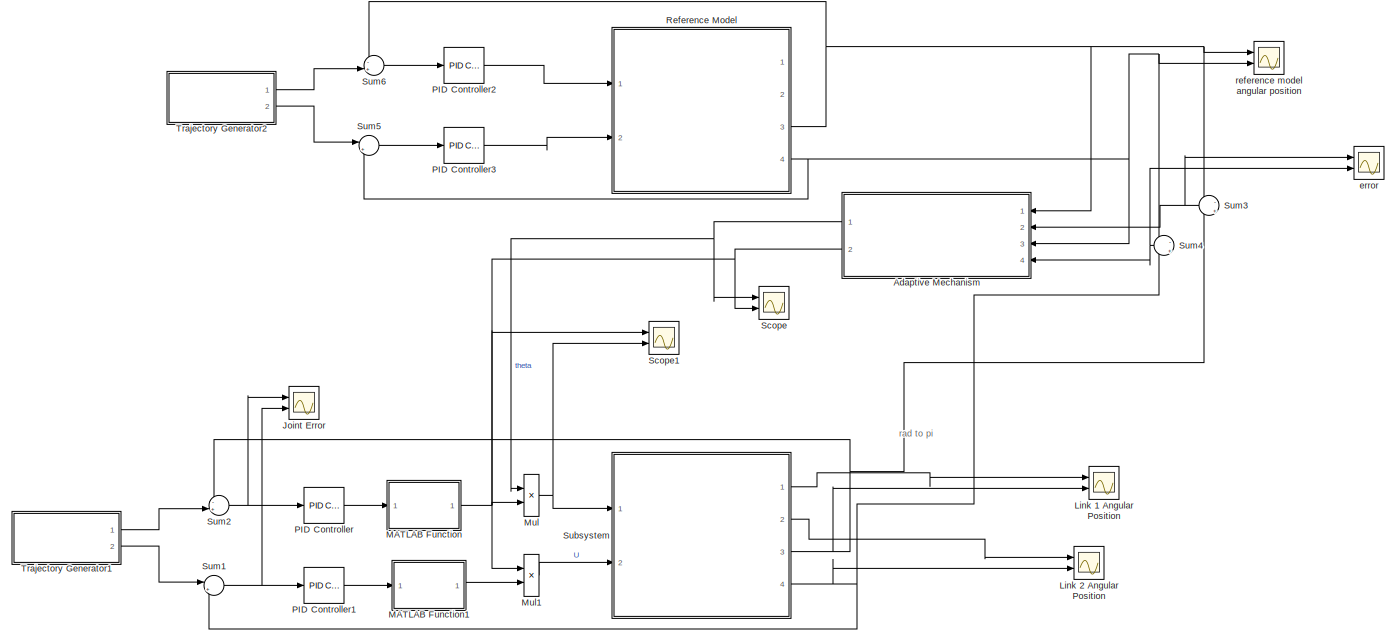
[diagram: root canvas - part 1/2, full width, top band]
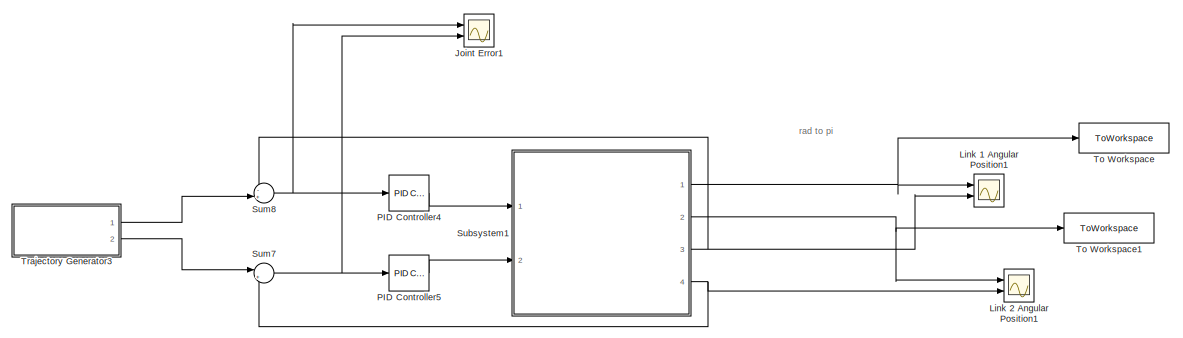
[diagram: root canvas - part 2/2, full width, bottom band]
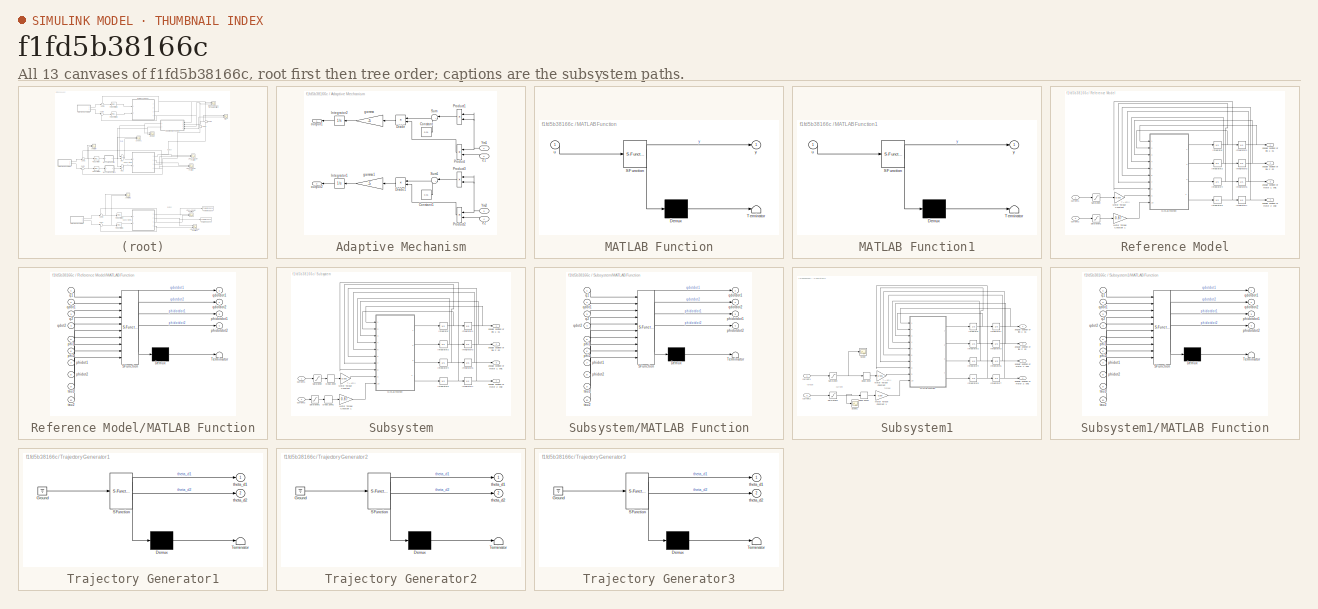
[diagram: thumbnail index - all 13 canvases of the model, root first then tree order]
MODEL slx_f1fd5b38166c
KIND model
CONFIG AbsTol = auto
CONFIG EnableMultiTasking = off
CONFIG FixedStep = auto
CONFIG MaxStep = auto
CONFIG MinStep = auto
CONFIG RelTol = 1e-3
CONFIG SampleTimeConstraint = Unconstrained
CONFIG Solver = VariableStepAuto
CONFIG SolverName = VariableStepAuto
CONFIG StartTime = 0.0
CONFIG StopTime = 10
BLOCK [SubSystem] Adaptive Mechanism
  Ports = [4, 2]
  RequestExecContextInheritance = off
BLOCK [Constant] Adaptive Mechanism/Constant
  Value = 0.01
BLOCK [Constant] Adaptive Mechanism/Constant1
  Value = 0.01
BLOCK [Product] Adaptive Mechanism/Divide
  InputSameDT = off
  Inputs = /*
  OutDataTypeStr = Inherit: Inherit via internal rule
  Ports = [2, 1]
  RndMeth = Floor
  SaturateOnIntegerOverflow = off
BLOCK [Product] Adaptive Mechanism/Divide1
  InputSameDT = off
  Inputs = /*
  OutDataTypeStr = Inherit: Inherit via internal rule
  Ports = [2, 1]
  RndMeth = Floor
  SaturateOnIntegerOverflow = off
BLOCK [Integrator] Adaptive Mechanism/Integrator1
  InitialCondition = 1
  Ports = [1, 1]
BLOCK [Integrator] Adaptive Mechanism/Integrator2
  InitialCondition = 1
  Ports = [1, 1]
BLOCK [Product] Adaptive Mechanism/Product
  InputSameDT = off
  OutDataTypeStr = Inherit: Inherit via internal rule
  Ports = [2, 1]
  RndMeth = Floor
  SaturateOnIntegerOverflow = off
BLOCK [Product] Adaptive Mechanism/Product1
  InputSameDT = off
  OutDataTypeStr = Inherit: Inherit via internal rule
  Ports = [2, 1]
  RndMeth = Floor
  SaturateOnIntegerOverflow = off
BLOCK [Product] Adaptive Mechanism/Product2
  InputSameDT = off
  OutDataTypeStr = Inherit: Inherit via internal rule
  Ports = [2, 1]
  RndMeth = Floor
  SaturateOnIntegerOverflow = off
BLOCK [Product] Adaptive Mechanism/Product3
  InputSameDT = off
  OutDataTypeStr = Inherit: Inherit via internal rule
  Ports = [2, 1]
  RndMeth = Floor
  SaturateOnIntegerOverflow = off
BLOCK [Sum] Adaptive Mechanism/Sum
  IconShape = round
  InputSameDT = off
  Inputs = |++
  OutDataTypeStr = Inherit: Inherit via internal rule
  Ports = [2, 1]
  SaturateOnIntegerOverflow = off
BLOCK [Sum] Adaptive Mechanism/Sum1
  IconShape = round
  InputSameDT = off
  Inputs = |++
  OutDataTypeStr = Inherit: Inherit via internal rule
  Ports = [2, 1]
  SaturateOnIntegerOverflow = off
BLOCK [Inport] Adaptive Mechanism/Ym1
  IconDisplay = Port number
BLOCK [Inport] Adaptive Mechanism/Ym2
  IconDisplay = Port number
  Port = 3
BLOCK [Inport] Adaptive Mechanism/e1
  IconDisplay = Port number
  Port = 2
BLOCK [Inport] Adaptive Mechanism/e2
  IconDisplay = Port number
  Port = 4
BLOCK [Gain] Adaptive Mechanism/gamma
  Gain = -5
  OutDataTypeStr = Inherit: Inherit via internal rule
  ParamDataTypeStr = Inherit: Inherit via internal rule
  SaturateOnIntegerOverflow = off
BLOCK [Gain] Adaptive Mechanism/gamma1
  Gain = -5
  OutDataTypeStr = Inherit: Inherit via internal rule
  ParamDataTypeStr = Inherit: Inherit via internal rule
  SaturateOnIntegerOverflow = off
BLOCK [Outport] Adaptive Mechanism/output1
  IconDisplay = Port number
  VectorParamsAs1DForOutWhenUnconnected = off
BLOCK [Outport] Adaptive Mechanism/output2
  IconDisplay = Port number
  Port = 2
  VectorParamsAs1DForOutWhenUnconnected = off
BLOCK [Scope] Joint Error
  Floating = off
  NumInputPorts = 2
  Ports = [2]
  ScopeSpecificationString = Simulink.scopes.TimeScopeBlockCfg('CurrentConfiguration', extmgr.ConfigurationSet(extmgr.Configuration('Core','General UI',true,'FigureColor',[1 1 1]),extmgr.Configuration('Core','Source UI',true),extmgr.Configuration('Sources','WiredSimulink',true,'DataLoggingVariableName','ScopeData1'),extmgr.Configuration('Visuals','Time Domain',true,'SerializedDisplays',{struct('MinYLimReal','-0.08155','MaxYLi...<+1880ch>
BLOCK [Scope] Joint Error1
  Floating = off
  NumInputPorts = 2
  Ports = [2]
  ScopeSpecificationString = Simulink.scopes.TimeScopeBlockCfg('CurrentConfiguration', extmgr.ConfigurationSet(extmgr.Configuration('Core','General UI',true,'FigureColor',[1 1 1]),extmgr.Configuration('Core','Source UI',true),extmgr.Configuration('Sources','WiredSimulink',true,'DataLoggingVariableName','ScopeData1'),extmgr.Configuration('Visuals','Time Domain',true,'SerializedDisplays',{struct('MinYLimReal','0.16146','MaxYLim...<+1826ch>
BLOCK [Scope] Link 1 Angular Position
  Floating = off
  NumInputPorts = 2
  Ports = [2]
  ScopeSpecificationString = Simulink.scopes.TimeScopeBlockCfg('CurrentConfiguration', extmgr.ConfigurationSet(extmgr.Configuration('Core','General UI',true,'FigureColor',[1 1 1]),extmgr.Configuration('Core','Source UI',true),extmgr.Configuration('Sources','WiredSimulink',true,'DataLoggingVariableName','ScopeData2'),extmgr.Configuration('Visuals','Time Domain',true,'SerializedDisplays',{struct('MinYLimReal','-0.09878','MaxYLi...<+1802ch>
BLOCK [Scope] Link 1 Angular Position1
  Floating = off
  NumInputPorts = 2
  Ports = [2]
  ScopeSpecificationString = Simulink.scopes.TimeScopeBlockCfg('CurrentConfiguration', extmgr.ConfigurationSet(extmgr.Configuration('Core','General UI',true,'FigureColor',[1 1 1]),extmgr.Configuration('Core','Source UI',true),extmgr.Configuration('Sources','WiredSimulink',true,'DataLoggingVariableName','ScopeData2'),extmgr.Configuration('Visuals','Time Domain',true,'SerializedDisplays',{struct('MinYLimReal','-0.09823','MaxYLi...<+1802ch>
BLOCK [Scope] Link 2 Angular Position
  Floating = off
  NumInputPorts = 2
  Ports = [2]
  ScopeSpecificationString = Simulink.scopes.TimeScopeBlockCfg('CurrentConfiguration', extmgr.ConfigurationSet(extmgr.Configuration('Core','General UI',true,'FigureColor',[1 1 1]),extmgr.Configuration('Core','Source UI',true),extmgr.Configuration('Sources','WiredSimulink',true,'DataLoggingVariableName','ScopeData3'),extmgr.Configuration('Visuals','Time Domain',true,'SerializedDisplays',{struct('MinYLimReal','-0.10005','MaxYLi...<+1830ch>
BLOCK [Scope] Link 2 Angular Position1
  Floating = off
  NumInputPorts = 2
  Ports = [2]
  ScopeSpecificationString = Simulink.scopes.TimeScopeBlockCfg('CurrentConfiguration', extmgr.ConfigurationSet(extmgr.Configuration('Core','General UI',true,'FigureColor',[1 1 1]),extmgr.Configuration('Core','Source UI',true),extmgr.Configuration('Sources','WiredSimulink',true,'DataLoggingVariableName','ScopeData3'),extmgr.Configuration('Visuals','Time Domain',true,'SerializedDisplays',{struct('MinYLimReal','-0.09818','MaxYLi...<+1831ch>
BLOCK [SubSystem] MATLAB Function
  ErrorFcn = Stateflow.Translate.translate
  PermitHierarchicalResolution = ExplicitOnly
  Ports = [1, 1]
  RequestExecContextInheritance = off
  SFBlockType = MATLAB Function
  TreatAsAtomicUnit = on
BLOCK [Demux] MATLAB Function/ Demux 
  Outputs = 1
  Ports = [1, 1]
BLOCK [S-Function] MATLAB Function/ SFunction 
  EnableBusSupport = on
  FunctionName = sf_sfun
  PortCounts = [1 2]
  Ports = [1, 2]
  SFcnIsStateOwnerBlock = off
  SFunctionDeploymentMode = off
  Tag = Stateflow S-Function 5
BLOCK [Terminator] MATLAB Function/ Terminator 
BLOCK [Inport] MATLAB Function/u
  IconDisplay = Port number
BLOCK [Outport] MATLAB Function/y
  IconDisplay = Port number
BLOCK [SubSystem] MATLAB Function1
  ErrorFcn = Stateflow.Translate.translate
  PermitHierarchicalResolution = ExplicitOnly
  Ports = [1, 1]
  RequestExecContextInheritance = off
  SFBlockType = MATLAB Function
  TreatAsAtomicUnit = on
BLOCK [Demux] MATLAB Function1/ Demux 
  Outputs = 1
  Ports = [1, 1]
BLOCK [S-Function] MATLAB Function1/ SFunction 
  EnableBusSupport = on
  FunctionName = sf_sfun
  PortCounts = [1 2]
  Ports = [1, 2]
  SFcnIsStateOwnerBlock = off
  SFunctionDeploymentMode = off
  Tag = Stateflow S-Function 6
BLOCK [Terminator] MATLAB Function1/ Terminator 
BLOCK [Inport] MATLAB Function1/u
  IconDisplay = Port number
BLOCK [Outport] MATLAB Function1/y
  IconDisplay = Port number
BLOCK [Product] Mul
  InputSameDT = off
  OutDataTypeStr = Inherit: Inherit via internal rule
  Ports = [2, 1]
  RndMeth = Floor
  SaturateOnIntegerOverflow = off
BLOCK [Product] Mul1
  InputSameDT = off
  OutDataTypeStr = Inherit: Inherit via internal rule
  Ports = [2, 1]
  RndMeth = Floor
  SaturateOnIntegerOverflow = off
BLOCK [Reference] PID Controller  REF=simulink/Continuous/PID Controller
  Ports = [1, 1]
  SourceBlock = simulink/Continuous/PID Controller
  SourceProductBaseCode = SL
  SourceProductName = Simulink
  SourceType = PID 1dof
BLOCK [Reference] PID Controller1  REF=simulink/Continuous/PID Controller
  Ports = [1, 1]
  SourceBlock = simulink/Continuous/PID Controller
  SourceProductBaseCode = SL
  SourceProductName = Simulink
  SourceType = PID 1dof
BLOCK [Reference] PID Controller2  REF=simulink/Continuous/PID Controller
  Ports = [1, 1]
  SourceBlock = simulink/Continuous/PID Controller
  SourceProductBaseCode = SL
  SourceProductName = Simulink
  SourceType = PID 1dof
BLOCK [Reference] PID Controller3  REF=simulink/Continuous/PID Controller
  Ports = [1, 1]
  SourceBlock = simulink/Continuous/PID Controller
  SourceProductBaseCode = SL
  SourceProductName = Simulink
  SourceType = PID 1dof
BLOCK [Reference] PID Controller4  REF=simulink/Continuous/PID Controller
  Ports = [1, 1]
  SourceBlock = simulink/Continuous/PID Controller
  SourceProductBaseCode = SL
  SourceProductName = Simulink
  SourceType = PID 1dof
BLOCK [Reference] PID Controller5  REF=simulink/Continuous/PID Controller
  Ports = [1, 1]
  SourceBlock = simulink/Continuous/PID Controller
  SourceProductBaseCode = SL
  SourceProductName = Simulink
  SourceType = PID 1dof
BLOCK [SubSystem] Reference Model
  Ports = [2, 4]
  RequestExecContextInheritance = off
BLOCK [Integrator] Reference Model/Integrator
  Ports = [1, 1]
BLOCK [Integrator] Reference Model/Integrator1
  Ports = [1, 1]
BLOCK [Integrator] Reference Model/Integrator2
  Ports = [1, 1]
BLOCK [Integrator] Reference Model/Integrator3
  Ports = [1, 1]
BLOCK [Integrator] Reference Model/Integrator4
  Ports = [1, 1]
BLOCK [Integrator] Reference Model/Integrator5
  Ports = [1, 1]
BLOCK [Integrator] Reference Model/Integrator6
  Ports = [1, 1]
BLOCK [Integrator] Reference Model/Integrator7
  Ports = [1, 1]
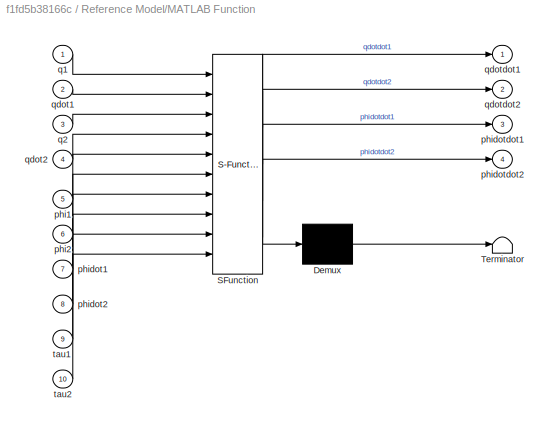
BLOCK [SubSystem] Reference Model/MATLAB Function
  ErrorFcn = Stateflow.Translate.translate
  PermitHierarchicalResolution = ExplicitOnly
  Ports = [10, 4]
  RequestExecContextInheritance = off
  SFBlockType = MATLAB Function
  TreatAsAtomicUnit = on
BLOCK [Demux] Reference Model/MATLAB Function/ Demux 
  Outputs = 1
  Ports = [1, 1]
BLOCK [S-Function] Reference Model/MATLAB Function/ SFunction 
  EnableBusSupport = on
  FunctionName = sf_sfun
  PortCounts = [10 5]
  Ports = [10, 5]
  SFcnIsStateOwnerBlock = off
  SFunctionDeploymentMode = off
  Tag = Stateflow S-Function 3
BLOCK [Terminator] Reference Model/MATLAB Function/ Terminator 
BLOCK [Inport] Reference Model/MATLAB Function/phi1
  IconDisplay = Port number
  Port = 5
BLOCK [Inport] Reference Model/MATLAB Function/phi2
  IconDisplay = Port number
  Port = 6
BLOCK [Inport] Reference Model/MATLAB Function/phidot1
  IconDisplay = Port number
  Port = 7
BLOCK [Inport] Reference Model/MATLAB Function/phidot2
  IconDisplay = Port number
  Port = 8
BLOCK [Outport] Reference Model/MATLAB Function/phidotdot1
  IconDisplay = Port number
  Port = 3
BLOCK [Outport] Reference Model/MATLAB Function/phidotdot2
  IconDisplay = Port number
  Port = 4
BLOCK [Inport] Reference Model/MATLAB Function/q1
  IconDisplay = Port number
BLOCK [Inport] Reference Model/MATLAB Function/q2
  IconDisplay = Port number
  Port = 3
BLOCK [Inport] Reference Model/MATLAB Function/qdot1
  IconDisplay = Port number
  Port = 2
BLOCK [Inport] Reference Model/MATLAB Function/qdot2
  IconDisplay = Port number
  Port = 4
BLOCK [Outport] Reference Model/MATLAB Function/qdotdot1
  IconDisplay = Port number
BLOCK [Outport] Reference Model/MATLAB Function/qdotdot2
  IconDisplay = Port number
  Port = 2
BLOCK [Inport] Reference Model/MATLAB Function/tau1
  IconDisplay = Port number
  Port = 9
BLOCK [Inport] Reference Model/MATLAB Function/tau2
  IconDisplay = Port number
  Port = 10
BLOCK [Gain] Reference Model/Motor Torque Constant 
  Gain = 8.925
  OutDataTypeStr = Inherit: Inherit via internal rule
  ParamDataTypeStr = Inherit: Inherit via internal rule
  SaturateOnIntegerOverflow = off
BLOCK [Gain] Reference Model/Motor Torque Constant 1
  Gain = 0.87
  OutDataTypeStr = Inherit: Inherit via internal rule
  ParamDataTypeStr = Inherit: Inherit via internal rule
  SaturateOnIntegerOverflow = off
BLOCK [Saturate] Reference Model/Saturation
  InputPortMap = u0
  LowerLimit = -0.94
  Ports = [1, 1]
  UpperLimit = 0.94
BLOCK [Saturate] Reference Model/Saturation1
  InputPortMap = u0
  LowerLimit = -0.94
  Ports = [1, 1]
  UpperLimit = 0.94
BLOCK [Outport] Reference Model/angular position of link 1: q1
  IconDisplay = Port number
BLOCK [Outport] Reference Model/angular position of link 2: q2
  IconDisplay = Port number
  Port = 2
BLOCK [Outport] Reference Model/angular position of motor 1: phi1
  IconDisplay = Port number
  Port = 3
BLOCK [Outport] Reference Model/angular position of motor 2: phi2
  IconDisplay = Port number
  Port = 4
BLOCK [Inport] Reference Model/current1
  IconDisplay = Port number
BLOCK [Inport] Reference Model/current2 
  IconDisplay = Port number
  Port = 2
BLOCK [Scope] Scope
  Floating = off
  NumInputPorts = 2
  Ports = [2]
  ScopeSpecificationString = Simulink.scopes.TimeScopeBlockCfg('CurrentConfiguration', extmgr.ConfigurationSet(extmgr.Configuration('Core','General UI',true),extmgr.Configuration('Core','Source UI',true),extmgr.Configuration('Sources','WiredSimulink',true,'DataLoggingVariableName','ScopeData1'),extmgr.Configuration('Visuals','Time Domain',true,'SerializedDisplays',{struct('MinYLimReal','0.885','MaxYLimReal','2.03497','YLabelR...<+1377ch>
BLOCK [Scope] Scope1
  Floating = off
  NumInputPorts = 2
  Ports = [2]
  ScopeSpecificationString = Simulink.scopes.TimeScopeBlockCfg('CurrentConfiguration', extmgr.ConfigurationSet(extmgr.Configuration('Core','General UI',true),extmgr.Configuration('Core','Source UI',true),extmgr.Configuration('Sources','WiredSimulink',true,'DataLoggingVariableName','ScopeData2'),extmgr.Configuration('Visuals','Time Domain',true,'SerializedDisplays',{struct('MinYLimReal','-0.57927','MaxYLimReal','6.24049','YLab...<+1399ch>
BLOCK [SubSystem] Subsystem
  Ports = [2, 4]
  RequestExecContextInheritance = off
BLOCK [DeadZone] Subsystem/Dead Zone
  LowerValue = -0.15
  UpperValue = 0.15
BLOCK [DeadZone] Subsystem/Dead Zone1
  LowerValue = -0.15
  UpperValue = 0.15
BLOCK [Integrator] Subsystem/Integrator
  Ports = [1, 1]
BLOCK [Integrator] Subsystem/Integrator1
  Ports = [1, 1]
BLOCK [Integrator] Subsystem/Integrator2
  Ports = [1, 1]
BLOCK [Integrator] Subsystem/Integrator3
  Ports = [1, 1]
BLOCK [Integrator] Subsystem/Integrator4
  Ports = [1, 1]
BLOCK [Integrator] Subsystem/Integrator5
  Ports = [1, 1]
BLOCK [Integrator] Subsystem/Integrator6
  Ports = [1, 1]
BLOCK [Integrator] Subsystem/Integrator7
  Ports = [1, 1]
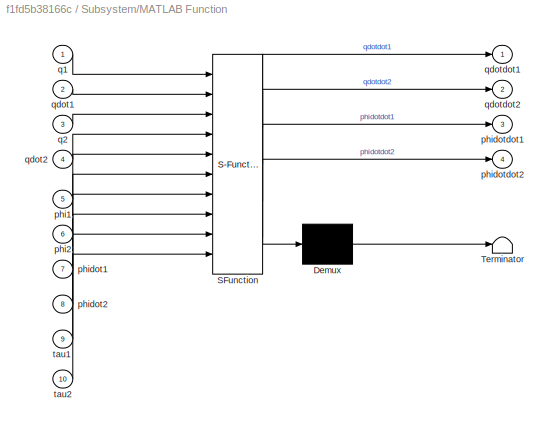
BLOCK [SubSystem] Subsystem/MATLAB Function
  ErrorFcn = Stateflow.Translate.translate
  PermitHierarchicalResolution = ExplicitOnly
  Ports = [10, 4]
  RequestExecContextInheritance = off
  SFBlockType = MATLAB Function
  TreatAsAtomicUnit = on
BLOCK [Demux] Subsystem/MATLAB Function/ Demux 
  Outputs = 1
  Ports = [1, 1]
BLOCK [S-Function] Subsystem/MATLAB Function/ SFunction 
  EnableBusSupport = on
  FunctionName = sf_sfun
  PortCounts = [10 5]
  Ports = [10, 5]
  SFcnIsStateOwnerBlock = off
  SFunctionDeploymentMode = off
  Tag = Stateflow S-Function 2
BLOCK [Terminator] Subsystem/MATLAB Function/ Terminator 
BLOCK [Inport] Subsystem/MATLAB Function/phi1
  IconDisplay = Port number
  Port = 5
BLOCK [Inport] Subsystem/MATLAB Function/phi2
  IconDisplay = Port number
  Port = 6
BLOCK [Inport] Subsystem/MATLAB Function/phidot1
  IconDisplay = Port number
  Port = 7
BLOCK [Inport] Subsystem/MATLAB Function/phidot2
  IconDisplay = Port number
  Port = 8
BLOCK [Outport] Subsystem/MATLAB Function/phidotdot1
  IconDisplay = Port number
  Port = 3
BLOCK [Outport] Subsystem/MATLAB Function/phidotdot2
  IconDisplay = Port number
  Port = 4
BLOCK [Inport] Subsystem/MATLAB Function/q1
  IconDisplay = Port number
BLOCK [Inport] Subsystem/MATLAB Function/q2
  IconDisplay = Port number
  Port = 3
BLOCK [Inport] Subsystem/MATLAB Function/qdot1
  IconDisplay = Port number
  Port = 2
BLOCK [Inport] Subsystem/MATLAB Function/qdot2
  IconDisplay = Port number
  Port = 4
BLOCK [Outport] Subsystem/MATLAB Function/qdotdot1
  IconDisplay = Port number
BLOCK [Outport] Subsystem/MATLAB Function/qdotdot2
  IconDisplay = Port number
  Port = 2
BLOCK [Inport] Subsystem/MATLAB Function/tau1
  IconDisplay = Port number
  Port = 9
BLOCK [Inport] Subsystem/MATLAB Function/tau2
  IconDisplay = Port number
  Port = 10
BLOCK [Gain] Subsystem/Motor Torque Constant 
  Gain = 8.925
  OutDataTypeStr = Inherit: Inherit via internal rule
  ParamDataTypeStr = Inherit: Inherit via internal rule
  SaturateOnIntegerOverflow = off
BLOCK [Gain] Subsystem/Motor Torque Constant 1
  Gain = 0.87
  OutDataTypeStr = Inherit: Inherit via internal rule
  ParamDataTypeStr = Inherit: Inherit via internal rule
  SaturateOnIntegerOverflow = off
BLOCK [Saturate] Subsystem/Saturation
  InputPortMap = u0
  LowerLimit = -0.94
  Ports = [1, 1]
  UpperLimit = 0.94
BLOCK [Saturate] Subsystem/Saturation1
  InputPortMap = u0
  LowerLimit = -0.94
  Ports = [1, 1]
  UpperLimit = 0.94
BLOCK [Outport] Subsystem/angular position of link 1: q1
  IconDisplay = Port number
BLOCK [Outport] Subsystem/angular position of link 2: q2
  IconDisplay = Port number
  Port = 2
BLOCK [Outport] Subsystem/angular position of motor 1: phi1
  IconDisplay = Port number
  Port = 3
BLOCK [Outport] Subsystem/angular position of motor 2: phi2
  IconDisplay = Port number
  Port = 4
BLOCK [Inport] Subsystem/current1
  IconDisplay = Port number
BLOCK [Inport] Subsystem/current2 
  IconDisplay = Port number
  Port = 2
BLOCK [SubSystem] Subsystem1
  Ports = [2, 4]
  RequestExecContextInheritance = off
BLOCK [DeadZone] Subsystem1/Dead Zone
  LowerValue = -0.15
  UpperValue = 0.15
BLOCK [DeadZone] Subsystem1/Dead Zone1
  LowerValue = -0.15
  UpperValue = 0.15
BLOCK [Integrator] Subsystem1/Integrator
  Ports = [1, 1]
BLOCK [Integrator] Subsystem1/Integrator1
  Ports = [1, 1]
BLOCK [Integrator] Subsystem1/Integrator2
  Ports = [1, 1]
BLOCK [Integrator] Subsystem1/Integrator3
  Ports = [1, 1]
BLOCK [Integrator] Subsystem1/Integrator4
  Ports = [1, 1]
BLOCK [Integrator] Subsystem1/Integrator5
  Ports = [1, 1]
BLOCK [Integrator] Subsystem1/Integrator6
  Ports = [1, 1]
BLOCK [Integrator] Subsystem1/Integrator7
  Ports = [1, 1]
BLOCK [SubSystem] Subsystem1/MATLAB Function
  ErrorFcn = Stateflow.Translate.translate
  PermitHierarchicalResolution = ExplicitOnly
  Ports = [10, 4]
  RequestExecContextInheritance = off
  SFBlockType = MATLAB Function
  TreatAsAtomicUnit = on
BLOCK [Demux] Subsystem1/MATLAB Function/ Demux 
  Outputs = 1
  Ports = [1, 1]
BLOCK [S-Function] Subsystem1/MATLAB Function/ SFunction 
  EnableBusSupport = on
  FunctionName = sf_sfun
  PortCounts = [10 5]
  Ports = [10, 5]
  SFcnIsStateOwnerBlock = off
  SFunctionDeploymentMode = off
  Tag = Stateflow S-Function 7
BLOCK [Terminator] Subsystem1/MATLAB Function/ Terminator 
BLOCK [Inport] Subsystem1/MATLAB Function/phi1
  IconDisplay = Port number
  Port = 5
BLOCK [Inport] Subsystem1/MATLAB Function/phi2
  IconDisplay = Port number
  Port = 6
BLOCK [Inport] Subsystem1/MATLAB Function/phidot1
  IconDisplay = Port number
  Port = 7
BLOCK [Inport] Subsystem1/MATLAB Function/phidot2
  IconDisplay = Port number
  Port = 8
BLOCK [Outport] Subsystem1/MATLAB Function/phidotdot1
  IconDisplay = Port number
  Port = 3
BLOCK [Outport] Subsystem1/MATLAB Function/phidotdot2
  IconDisplay = Port number
  Port = 4
BLOCK [Inport] Subsystem1/MATLAB Function/q1
  IconDisplay = Port number
BLOCK [Inport] Subsystem1/MATLAB Function/q2
  IconDisplay = Port number
  Port = 3
BLOCK [Inport] Subsystem1/MATLAB Function/qdot1
  IconDisplay = Port number
  Port = 2
BLOCK [Inport] Subsystem1/MATLAB Function/qdot2
  IconDisplay = Port number
  Port = 4
BLOCK [Outport] Subsystem1/MATLAB Function/qdotdot1
  IconDisplay = Port number
BLOCK [Outport] Subsystem1/MATLAB Function/qdotdot2
  IconDisplay = Port number
  Port = 2
BLOCK [Inport] Subsystem1/MATLAB Function/tau1
  IconDisplay = Port number
  Port = 9
BLOCK [Inport] Subsystem1/MATLAB Function/tau2
  IconDisplay = Port number
  Port = 10
BLOCK [Gain] Subsystem1/Motor Torque Constant 
  Gain = 8.925
  OutDataTypeStr = Inherit: Inherit via internal rule
  ParamDataTypeStr = Inherit: Inherit via internal rule
  SaturateOnIntegerOverflow = off
BLOCK [Gain] Subsystem1/Motor Torque Constant 1
  Gain = 0.87
  OutDataTypeStr = Inherit: Inherit via internal rule
  ParamDataTypeStr = Inherit: Inherit via internal rule
  SaturateOnIntegerOverflow = off
BLOCK [Saturate] Subsystem1/Saturation
  InputPortMap = u0
  LowerLimit = -1
  Ports = [1, 1]
  UpperLimit = 1
BLOCK [Saturate] Subsystem1/Saturation1
  InputPortMap = u0
  Ports = [1, 1]
BLOCK [Scope] Subsystem1/Scope
  Floating = off
  NumInputPorts = 1
  Ports = [1]
  ScopeSpecificationString = Simulink.scopes.TimeScopeBlockCfg('CurrentConfiguration', extmgr.ConfigurationSet(extmgr.Configuration('Core','General UI',true),extmgr.Configuration('Core','Source UI',true),extmgr.Configuration('Sources','WiredSimulink',true,'DataLoggingVariableName','ScopeData1'),extmgr.Configuration('Visuals','Time Domain',true,'SerializedDisplays',{struct('MinYLimReal','-0.12506','MaxYLimReal','1.12501','YLab...<+1369ch>
BLOCK [Scope] Subsystem1/Scope1
  Floating = off
  NumInputPorts = 1
  Ports = [1]
  ScopeSpecificationString = Simulink.scopes.TimeScopeBlockCfg('CurrentConfiguration', extmgr.ConfigurationSet(extmgr.Configuration('Core','General UI',true),extmgr.Configuration('Core','Source UI',true),extmgr.Configuration('Sources','WiredSimulink',true,'DataLoggingVariableName','ScopeData2'),extmgr.Configuration('Visuals','Time Domain',true,'SerializedDisplays',{struct('MinYLimReal','-0.06251','MaxYLimReal','0.5625','YLabe...<+1366ch>
BLOCK [Outport] Subsystem1/angular position of link 1: q1
  IconDisplay = Port number
BLOCK [Outport] Subsystem1/angular position of link 2: q2
  IconDisplay = Port number
  Port = 2
BLOCK [Outport] Subsystem1/angular position of motor 1: phi1
  IconDisplay = Port number
  Port = 3
BLOCK [Outport] Subsystem1/angular position of motor 2: phi2
  IconDisplay = Port number
  Port = 4
BLOCK [Inport] Subsystem1/current1
  IconDisplay = Port number
BLOCK [Inport] Subsystem1/current2 
  IconDisplay = Port number
  Port = 2
BLOCK [Sum] Sum1
  IconShape = round
  InputSameDT = off
  Inputs = |+-
  OutDataTypeStr = Inherit: Inherit via internal rule
  Ports = [2, 1]
  SaturateOnIntegerOverflow = off
BLOCK [Sum] Sum2
  IconShape = round
  InputSameDT = off
  Inputs = -+|
  OutDataTypeStr = Inherit: Inherit via internal rule
  Ports = [2, 1]
  SaturateOnIntegerOverflow = off
BLOCK [Sum] Sum3
  IconShape = round
  InputSameDT = off
  Inputs = -|+
  OutDataTypeStr = Inherit: Inherit via internal rule
  Ports = [2, 1]
  SaturateOnIntegerOverflow = off
BLOCK [Sum] Sum4
  IconShape = round
  InputSameDT = off
  Inputs = -|+
  OutDataTypeStr = Inherit: Inherit via internal rule
  Ports = [2, 1]
  SaturateOnIntegerOverflow = off
BLOCK [Sum] Sum5
  IconShape = round
  InputSameDT = off
  Inputs = |+-
  OutDataTypeStr = Inherit: Inherit via internal rule
  Ports = [2, 1]
  SaturateOnIntegerOverflow = off
BLOCK [Sum] Sum6
  IconShape = round
  InputSameDT = off
  Inputs = -+|
  OutDataTypeStr = Inherit: Inherit via internal rule
  Ports = [2, 1]
  SaturateOnIntegerOverflow = off
BLOCK [Sum] Sum7
  IconShape = round
  InputSameDT = off
  Inputs = |+-
  OutDataTypeStr = Inherit: Inherit via internal rule
  Ports = [2, 1]
  SaturateOnIntegerOverflow = off
BLOCK [Sum] Sum8
  IconShape = round
  InputSameDT = off
  Inputs = -+|
  OutDataTypeStr = Inherit: Inherit via internal rule
  Ports = [2, 1]
  SaturateOnIntegerOverflow = off
BLOCK [ToWorkspace] To Workspace
  FixptAsFi = on
  MaxDataPoints = inf
  Ports = [1]
  SampleTime = -1
  SaveFormat = Timeseries
  VariableName = stage1
BLOCK [ToWorkspace] To Workspace1
  FixptAsFi = on
  MaxDataPoints = inf
  Ports = [1]
  SampleTime = -1
  SaveFormat = Timeseries
  VariableName = stage2
BLOCK [SubSystem] Trajectory Generator1
  ErrorFcn = Stateflow.Translate.translate
  PermitHierarchicalResolution = ExplicitOnly
  Ports = [0, 2]
  RequestExecContextInheritance = off
  SFBlockType = MATLAB Function
  TreatAsAtomicUnit = on
BLOCK [Demux] Trajectory Generator1/ Demux 
  Outputs = 1
  Ports = [1, 1]
BLOCK [Ground] Trajectory Generator1/ Ground 
BLOCK [S-Function] Trajectory Generator1/ SFunction 
  EnableBusSupport = on
  FunctionName = sf_sfun
  PortCounts = [1 3]
  Ports = [1, 3]
  SFcnIsStateOwnerBlock = off
  SFunctionDeploymentMode = off
  Tag = Stateflow S-Function 1
BLOCK [Terminator] Trajectory Generator1/ Terminator 
BLOCK [Outport] Trajectory Generator1/theta_d1
  IconDisplay = Port number
BLOCK [Outport] Trajectory Generator1/theta_d2
  IconDisplay = Port number
  Port = 2
BLOCK [SubSystem] Trajectory Generator2
  ErrorFcn = Stateflow.Translate.translate
  PermitHierarchicalResolution = ExplicitOnly
  Ports = [0, 2]
  RequestExecContextInheritance = off
  SFBlockType = MATLAB Function
  TreatAsAtomicUnit = on
BLOCK [Demux] Trajectory Generator2/ Demux 
  Outputs = 1
  Ports = [1, 1]
BLOCK [Ground] Trajectory Generator2/ Ground 
BLOCK [S-Function] Trajectory Generator2/ SFunction 
  EnableBusSupport = on
  FunctionName = sf_sfun
  PortCounts = [1 3]
  Ports = [1, 3]
  SFcnIsStateOwnerBlock = off
  SFunctionDeploymentMode = off
  Tag = Stateflow S-Function 4
BLOCK [Terminator] Trajectory Generator2/ Terminator 
BLOCK [Outport] Trajectory Generator2/theta_d1
  IconDisplay = Port number
BLOCK [Outport] Trajectory Generator2/theta_d2
  IconDisplay = Port number
  Port = 2
BLOCK [SubSystem] Trajectory Generator3
  ErrorFcn = Stateflow.Translate.translate
  PermitHierarchicalResolution = ExplicitOnly
  Ports = [0, 2]
  RequestExecContextInheritance = off
  SFBlockType = MATLAB Function
  TreatAsAtomicUnit = on
BLOCK [Demux] Trajectory Generator3/ Demux 
  Outputs = 1
  Ports = [1, 1]
BLOCK [Ground] Trajectory Generator3/ Ground 
BLOCK [S-Function] Trajectory Generator3/ SFunction 
  EnableBusSupport = on
  FunctionName = sf_sfun
  PortCounts = [1 3]
  Ports = [1, 3]
  SFcnIsStateOwnerBlock = off
  SFunctionDeploymentMode = off
  Tag = Stateflow S-Function 8
BLOCK [Terminator] Trajectory Generator3/ Terminator 
BLOCK [Outport] Trajectory Generator3/theta_d1
  IconDisplay = Port number
BLOCK [Outport] Trajectory Generator3/theta_d2
  IconDisplay = Port number
  Port = 2
BLOCK [Scope] error
  Floating = off
  NumInputPorts = 2
  Ports = [2]
  ScopeSpecificationString = Simulink.scopes.TimeScopeBlockCfg('CurrentConfiguration', extmgr.ConfigurationSet(extmgr.Configuration('Core','General UI',true),extmgr.Configuration('Core','Source UI',true),extmgr.Configuration('Sources','WiredSimulink',true,'DataLoggingVariableName','ScopeData4'),extmgr.Configuration('Visuals','Time Domain',true,'SerializedDisplays',{struct('MinYLimReal','-0.08362','MaxYLimReal','0.05818','YLab...<+1370ch>
BLOCK [Scope] reference model angular position
  Floating = off
  NumInputPorts = 2
  Ports = [2]
  ScopeSpecificationString = Simulink.scopes.TimeScopeBlockCfg('CurrentConfiguration', extmgr.ConfigurationSet(extmgr.Configuration('Core','General UI',true),extmgr.Configuration('Core','Source UI',true),extmgr.Configuration('Sources','WiredSimulink',true,'DataLoggingVariableName','ScopeData3'),extmgr.Configuration('Visuals','Time Domain',true,'SerializedDisplays',{struct('MinYLimReal','-0.09889','MaxYLimReal','0.88366','YLab...<+1451ch>
ANNOTATION (root): rad to pi
ANNOTATION Reference Model: T = Km*I
ANNOTATION Subsystem: T = Km*I
ANNOTATION Subsystem1: T = Km*I
ANNOTATION Subsystem1: current
ANNOTATION Subsystem1: torque
LINE Adaptive Mechanism/Constant1:1 -> Adaptive Mechanism/Sum1:2
LINE Adaptive Mechanism/Constant:1 -> Adaptive Mechanism/Sum:2
LINE Adaptive Mechanism/Divide1:1 -> Adaptive Mechanism/gamma1:1
LINE Adaptive Mechanism/Divide:1 -> Adaptive Mechanism/gamma:1
LINE Adaptive Mechanism/Integrator1:1 -> Adaptive Mechanism/output2:1
LINE Adaptive Mechanism/Integrator2:1 -> Adaptive Mechanism/output1:1
LINE Adaptive Mechanism/Product1:1 -> Adaptive Mechanism/Sum:1
LINE Adaptive Mechanism/Product2:1 -> Adaptive Mechanism/Divide1:2
LINE Adaptive Mechanism/Product3:1 -> Adaptive Mechanism/Sum1:1
LINE Adaptive Mechanism/Product:1 -> Adaptive Mechanism/Divide:2
LINE Adaptive Mechanism/Sum1:1 -> Adaptive Mechanism/Divide1:1
LINE Adaptive Mechanism/Sum:1 -> Adaptive Mechanism/Divide:1
NET Adaptive Mechanism/Ym1:1 -> Adaptive Mechanism/Product1:1, Adaptive Mechanism/Product1:2, Adaptive Mechanism/Product:1
NET Adaptive Mechanism/Ym2:1 -> Adaptive Mechanism/Product2:1, Adaptive Mechanism/Product3:1, Adaptive Mechanism/Product3:2
LINE Adaptive Mechanism/e1:1 -> Adaptive Mechanism/Product:2
LINE Adaptive Mechanism/e2:1 -> Adaptive Mechanism/Product2:2
LINE Adaptive Mechanism/gamma1:1 -> Adaptive Mechanism/Integrator1:1
LINE Adaptive Mechanism/gamma:1 -> Adaptive Mechanism/Integrator2:1
NET Adaptive Mechanism:1 -> Mul:1, Scope:1
NET Adaptive Mechanism:2 -> Mul1:1, Scope:2
LINE MATLAB Function1:1 -> Mul1:2
NET MATLAB Function:1 -> Mul:2, Scope1:1
LINE Mul1:1 -> Subsystem:2
NET Mul:1 -> Scope1:2, Subsystem:1
LINE PID Controller1:1 -> MATLAB Function1:1
LINE PID Controller2:1 -> Reference Model:1
LINE PID Controller3:1 -> Reference Model:2
LINE PID Controller4:1 -> Subsystem1:1
LINE PID Controller5:1 -> Subsystem1:2
LINE PID Controller:1 -> MATLAB Function:1
NET Reference Model/Integrator1:1 -> Reference Model/MATLAB Function:1, Reference Model/angular position of link 1: q1:1
NET Reference Model/Integrator2:1 -> Reference Model/Integrator3:1, Reference Model/MATLAB Function:4
NET Reference Model/Integrator3:1 -> Reference Model/MATLAB Function:3, Reference Model/angular position of link 2: q2:1
NET Reference Model/Integrator4:1 -> Reference Model/Integrator5:1, Reference Model/MATLAB Function:7
NET Reference Model/Integrator5:1 -> Reference Model/MATLAB Function:5, Reference Model/angular position of motor 1: phi1:1
NET Reference Model/Integrator6:1 -> Reference Model/Integrator7:1, Reference Model/MATLAB Function:8
NET Reference Model/Integrator7:1 -> Reference Model/MATLAB Function:6, Reference Model/angular position of motor 2: phi2:1
NET Reference Model/Integrator:1 -> Reference Model/Integrator1:1, Reference Model/MATLAB Function:2
LINE Reference Model/MATLAB Function:1 -> Reference Model/Integrator:1
LINE Reference Model/MATLAB Function:2 -> Reference Model/Integrator2:1
LINE Reference Model/MATLAB Function:3 -> Reference Model/Integrator4:1
LINE Reference Model/MATLAB Function:4 -> Reference Model/Integrator6:1
LINE Reference Model/Motor Torque Constant 1:1 -> Reference Model/MATLAB Function:10
LINE Reference Model/Motor Torque Constant :1 -> Reference Model/MATLAB Function:9
LINE Reference Model/Saturation1:1 -> Reference Model/Motor Torque Constant 1:1
LINE Reference Model/Saturation:1 -> Reference Model/Motor Torque Constant :1
LINE Reference Model/current1:1 -> Reference Model/Saturation:1
LINE Reference Model/current2 :1 -> Reference Model/Saturation1:1
NET Reference Model:3 -> Adaptive Mechanism:1, Sum3:1, Sum6:1, reference model angular position:1
NET Reference Model:4 -> Adaptive Mechanism:3, Sum4:1, Sum5:2, reference model angular position:2
LINE Subsystem/Dead Zone1:1 -> Subsystem/Motor Torque Constant 1:1
LINE Subsystem/Dead Zone:1 -> Subsystem/Motor Torque Constant :1
NET Subsystem/Integrator1:1 -> Subsystem/MATLAB Function:1, Subsystem/angular position of link 1: q1:1
NET Subsystem/Integrator2:1 -> Subsystem/Integrator3:1, Subsystem/MATLAB Function:4
NET Subsystem/Integrator3:1 -> Subsystem/MATLAB Function:3, Subsystem/angular position of link 2: q2:1
NET Subsystem/Integrator4:1 -> Subsystem/Integrator5:1, Subsystem/MATLAB Function:7
NET Subsystem/Integrator5:1 -> Subsystem/MATLAB Function:5, Subsystem/angular position of motor 1: phi1:1
NET Subsystem/Integrator6:1 -> Subsystem/Integrator7:1, Subsystem/MATLAB Function:8
NET Subsystem/Integrator7:1 -> Subsystem/MATLAB Function:6, Subsystem/angular position of motor 2: phi2:1
NET Subsystem/Integrator:1 -> Subsystem/Integrator1:1, Subsystem/MATLAB Function:2
LINE Subsystem/MATLAB Function:1 -> Subsystem/Integrator:1
LINE Subsystem/MATLAB Function:2 -> Subsystem/Integrator2:1
LINE Subsystem/MATLAB Function:3 -> Subsystem/Integrator4:1
LINE Subsystem/MATLAB Function:4 -> Subsystem/Integrator6:1
LINE Subsystem/Motor Torque Constant 1:1 -> Subsystem/MATLAB Function:10
LINE Subsystem/Motor Torque Constant :1 -> Subsystem/MATLAB Function:9
LINE Subsystem/Saturation1:1 -> Subsystem/Dead Zone1:1
LINE Subsystem/Saturation:1 -> Subsystem/Dead Zone:1
LINE Subsystem/current1:1 -> Subsystem/Saturation:1
LINE Subsystem/current2 :1 -> Subsystem/Saturation1:1
LINE Subsystem1/Dead Zone1:1 -> Subsystem1/Motor Torque Constant 1:1
LINE Subsystem1/Dead Zone:1 -> Subsystem1/Motor Torque Constant :1
NET Subsystem1/Integrator1:1 -> Subsystem1/MATLAB Function:1, Subsystem1/angular position of link 1: q1:1
NET Subsystem1/Integrator2:1 -> Subsystem1/Integrator3:1, Subsystem1/MATLAB Function:4
NET Subsystem1/Integrator3:1 -> Subsystem1/MATLAB Function:3, Subsystem1/angular position of link 2: q2:1
NET Subsystem1/Integrator4:1 -> Subsystem1/Integrator5:1, Subsystem1/MATLAB Function:7
NET Subsystem1/Integrator5:1 -> Subsystem1/MATLAB Function:5, Subsystem1/angular position of motor 1: phi1:1
NET Subsystem1/Integrator6:1 -> Subsystem1/Integrator7:1, Subsystem1/MATLAB Function:8
NET Subsystem1/Integrator7:1 -> Subsystem1/MATLAB Function:6, Subsystem1/angular position of motor 2: phi2:1
NET Subsystem1/Integrator:1 -> Subsystem1/Integrator1:1, Subsystem1/MATLAB Function:2
LINE Subsystem1/MATLAB Function:1 -> Subsystem1/Integrator:1
LINE Subsystem1/MATLAB Function:2 -> Subsystem1/Integrator2:1
LINE Subsystem1/MATLAB Function:3 -> Subsystem1/Integrator4:1
LINE Subsystem1/MATLAB Function:4 -> Subsystem1/Integrator6:1
LINE Subsystem1/Motor Torque Constant 1:1 -> Subsystem1/MATLAB Function:10
LINE Subsystem1/Motor Torque Constant :1 -> Subsystem1/MATLAB Function:9
NET Subsystem1/Saturation1:1 -> Subsystem1/Dead Zone1:1, Subsystem1/Scope1:1
NET Subsystem1/Saturation:1 -> Subsystem1/Dead Zone:1, Subsystem1/Scope:1
LINE Subsystem1/current1:1 -> Subsystem1/Saturation:1
LINE Subsystem1/current2 :1 -> Subsystem1/Saturation1:1
NET Subsystem1:1 -> Link 1 Angular Position1:1, To Workspace:1
NET Subsystem1:2 -> Link 2 Angular Position1:1, To Workspace1:1
NET Subsystem1:3 -> Link 1 Angular Position1:2, Sum8:1
NET Subsystem1:4 -> Link 2 Angular Position1:2, Sum7:2
LINE Subsystem:1 -> Link 1 Angular Position:1
LINE Subsystem:2 -> Link 2 Angular Position:1
NET Subsystem:3 -> Link 1 Angular Position:2, Sum2:1, Sum3:2
NET Subsystem:4 -> Link 2 Angular Position:2, Sum1:2, Sum4:2
NET Sum1:1 -> Joint Error:2, PID Controller1:1
NET Sum2:1 -> Joint Error:1, PID Controller:1
NET Sum3:1 -> Adaptive Mechanism:2, error:1
NET Sum4:1 -> Adaptive Mechanism:4, error:2
LINE Sum5:1 -> PID Controller3:1
LINE Sum6:1 -> PID Controller2:1
NET Sum7:1 -> Joint Error1:2, PID Controller5:1
NET Sum8:1 -> Joint Error1:1, PID Controller4:1
LINE Trajectory Generator1:1 -> Sum2:2
LINE Trajectory Generator1:2 -> Sum1:1
LINE Trajectory Generator2:1 -> Sum6:2
LINE Trajectory Generator2:2 -> Sum5:1
LINE Trajectory Generator3:1 -> Sum8:2
LINE Trajectory Generator3:2 -> Sum7:1
note: NET lines group one-source signal fan-out (src -> all destinations, sorted); 1:1 wires keep LINE
CHART Trajectory Generator1 states=1 transitions=1
  STATE_LABEL 'eML_blk_kernel()'
  STATE_LABEL 'SCRIPT:\nfunction [theta_d1,theta_d2]  = fcn\ntheta_start1 = 0;\ntheta_start2 = 0;\ntheta_end1 = pi/4;\ntheta_end2 = pi/4;\ntheta_d1 = theta_start1 + (theta_end1-theta_start1);\ntheta_d2 = theta_start2 + (theta_end2-theta_start2);\n'  <repeated x3 — deduplicated; at blocks: Trajectory Generator1, Trajectory Generator2, Trajectory Generator3>
CHART Subsystem/MATLAB Function states=1 transitions=1
  STATE_LABEL 'eML_blk_kernel()'
  STATE_LABEL 'SCRIPT:\nfunction [qdotdot1,qdotdot2,phidotdot1,phidotdot2] = fcn(q1,qdot1,q2,qdot2,phi1,phi2,phidot1,phidot2,tau1,tau2)\n%y is thetadotdot\ntau = [0;0;tau1;tau2];\n%Veltman Thesis Values\n% m1 = 0.5; \n% m2 = 1;\n% L1 = 0.343;\n% L2 = 0.267;\n% Lc1 = 0.2;\n% Lc2 = 0.25;\n% I1 = 0.01;\n% I2 = 0.01;\n% B1 = 0.070364;\n% B2 = 0.028211;\n\n%Electrical School values\nL1 = 0.343;\nL2 = 0.267;\nLc1 = 0.1590;\nLc2 = 0.0550;...<+936ch>'  <repeated x3 — deduplicated; at blocks: MATLAB Function>
CHART Reference Model/MATLAB Function states=1 transitions=1
  STATE_LABEL 'eML_blk_kernel()'
CHART Trajectory Generator2 states=1 transitions=1
  STATE_LABEL 'eML_blk_kernel()'
CHART MATLAB Function states=1 transitions=1
  STATE_LABEL 'eML_blk_kernel()'
  STATE_LABEL 'SCRIPT:\nfunction y = fcn(u)\n\n    if (u>0) \n        y = u + 0.1; %compensate deadzone values\n    elseif (u<0)\n        y = u - 0.1;\n    else\n        y=u;\n    end\n'
CHART MATLAB Function1 states=1 transitions=1
  STATE_LABEL 'eML_blk_kernel()'
  STATE_LABEL 'SCRIPT:\nfunction y = fcn(u)\n\n    if (u>0) \n        y = u + 0.1; %compensate deadzone values\n    elseif (u<0)\n        y = u - 0.1;\n    else\n        y=u;\n    end\n'
CHART Subsystem1/MATLAB Function states=1 transitions=1
  STATE_LABEL 'eML_blk_kernel()'
CHART Trajectory Generator3 states=1 transitions=1
  STATE_LABEL 'eML_blk_kernel()'
